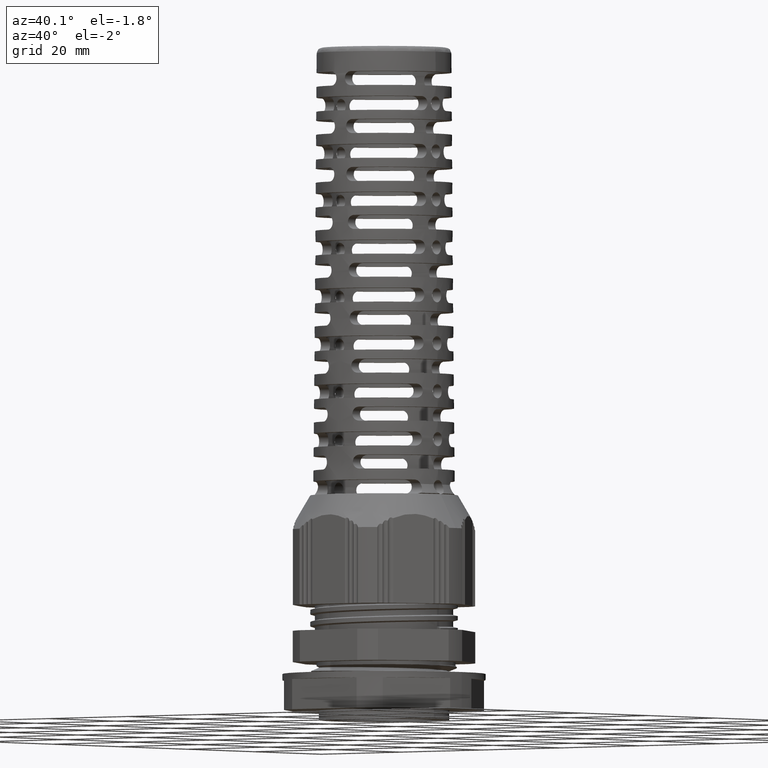
[diagram: clean part render]
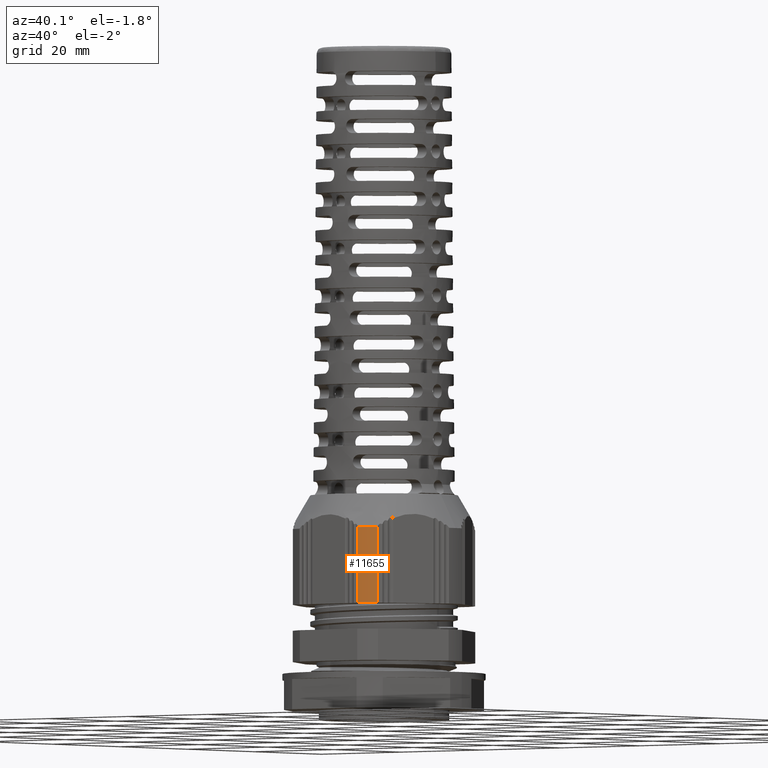
[diagram: same view with one face highlighted and labeled with its STEP entity id]
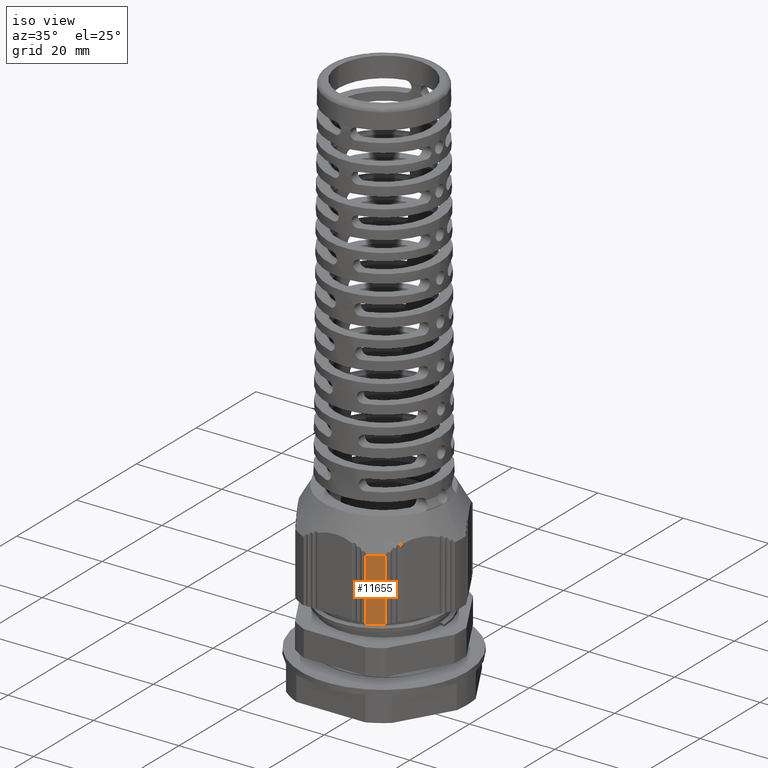
[diagram: same view with one face highlighted and labeled with its STEP entity id]
A machine part, auxiliary view. The second image highlights one B-rep face of the part: STEP entity #11655.
A second angle (iso view) of the same face is appended — the face is thin or edge-on in the first view.
In plain terms, the highlighted cylindrical surface (partial cylindrical patch) has radius 18 mm, axis along (-0, -0, -1).
Its self-contained STEP definition (entity closure, byte-faithful):
#518 = DIRECTION ( 'NONE',  ( 0.0000000000000000000, 0.0000000000000000000, 1.000000000000000000 ) ) ;
#537 = CARTESIAN_POINT ( 'NONE',  ( 10.59389817393639700, -14.55229608963022900, 45.65609929398130600 ) ) ;
#545 = LINE ( 'NONE', #537, #9125 ) ;
#553 = LINE ( 'NONE', #575, #9123 ) ;
#570 = DIRECTION ( 'NONE',  ( -0.0000000000000000000, -0.0000000000000000000, -1.000000000000000000 ) ) ;
#575 = CARTESIAN_POINT ( 'NONE',  ( 7.305709010044921600, -16.45073298854943600, 45.65609929398130600 ) ) ;
#627 = DIRECTION ( 'NONE',  ( 0.0000000000000000000, 0.0000000000000000000, 1.000000000000000000 ) ) ;
#651 = DIRECTION ( 'NONE',  ( -1.000000000000000000, -1.776356839400250500E-015, 0.0000000000000000000 ) ) ;
#658 = CARTESIAN_POINT ( 'NONE',  ( 0.0000000000000000000, 0.0000000000000000000, 21.95609929398128900 ) ) ;
#668 = DIRECTION ( 'NONE',  ( -0.0000000000000000000, -0.0000000000000000000, 1.000000000000000000 ) ) ;
#698 = DIRECTION ( 'NONE',  ( -1.000000000000000000, -1.776356839400250500E-015, 0.0000000000000000000 ) ) ;
#710 = CARTESIAN_POINT ( 'NONE',  ( 0.0000000000000000000, 0.0000000000000000000, 36.48659403398754400 ) ) ;
#1701 = EDGE_LOOP ( 'NONE', ( #18007, #18020, #18044, #18067 ) ) ;
#3330 = CARTESIAN_POINT ( 'NONE',  ( 7.305709010044918900, -16.45073298854944000, 21.95609929398128900 ) ) ;
#3398 = CARTESIAN_POINT ( 'NONE',  ( 7.305709010044917100, -16.45073298854943600, 36.48659403398754400 ) ) ;
#3407 = CARTESIAN_POINT ( 'NONE',  ( 10.59389817393639500, -14.55229608963022700, 36.48659403398754400 ) ) ;
#3412 = CARTESIAN_POINT ( 'NONE',  ( 10.59389817393639500, -14.55229608963023000, 21.95609929398128900 ) ) ;
#5021 = FACE_OUTER_BOUND ( 'NONE', #1701, .T. ) ;
#5070 = DIRECTION ( 'NONE',  ( -0.0000000000000000000, -0.0000000000000000000, -1.000000000000000000 ) ) ;
#5102 = DIRECTION ( 'NONE',  ( -1.000000000000000000, 0.0000000000000000000, 0.0000000000000000000 ) ) ;
#5114 = CYLINDRICAL_SURFACE ( 'NONE', #10359, 18.00000000000000700 ) ;
#5116 = CARTESIAN_POINT ( 'NONE',  ( 0.0000000000000000000, 0.0000000000000000000, 45.65609929398130600 ) ) ;
#9081 = AXIS2_PLACEMENT_3D ( 'NONE', #658, #627, #651 ) ;
#9123 = VECTOR ( 'NONE', #570, 1000.000000000000000 ) ;
#9125 = VECTOR ( 'NONE', #518, 1000.000000000000000 ) ;
#9173 = CIRCLE ( 'NONE', #9081, 18.00000000000000700 ) ;
#9254 = CIRCLE ( 'NONE', #9314, 18.00000000000000400 ) ;
#9314 = AXIS2_PLACEMENT_3D ( 'NONE', #710, #668, #698 ) ;
#10359 = AXIS2_PLACEMENT_3D ( 'NONE', #5116, #5070, #5102 ) ;
#11655 = ADVANCED_FACE ( 'NONE', ( #5021 ), #5114, .T. ) ;
#15847 = VERTEX_POINT ( 'NONE', #3330 ) ;
#15912 = VERTEX_POINT ( 'NONE', #3412 ) ;
#15919 = VERTEX_POINT ( 'NONE', #3407 ) ;
#15954 = VERTEX_POINT ( 'NONE', #3398 ) ;
#17488 = EDGE_CURVE ( 'NONE', #15912, #15919, #545, .T. ) ;
#17498 = EDGE_CURVE ( 'NONE', #15954, #15847, #553, .T. ) ;
#17508 = EDGE_CURVE ( 'NONE', #15847, #15912, #9173, .T. ) ;
#17525 = EDGE_CURVE ( 'NONE', #15954, #15919, #9254, .T. ) ;
#18007 = ORIENTED_EDGE ( 'NONE', *, *, #17488, .T. ) ;
#18020 = ORIENTED_EDGE ( 'NONE', *, *, #17525, .F. ) ;
#18044 = ORIENTED_EDGE ( 'NONE', *, *, #17498, .T. ) ;
#18067 = ORIENTED_EDGE ( 'NONE', *, *, #17508, .T. ) ;